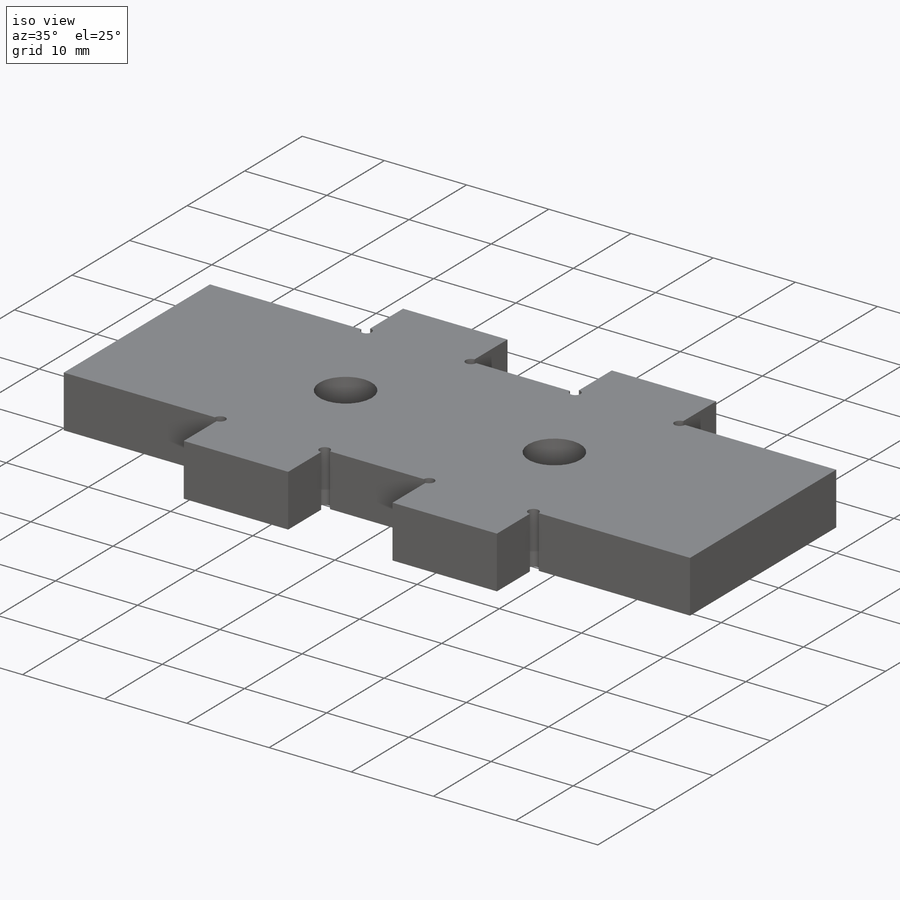
[diagram: iso view]
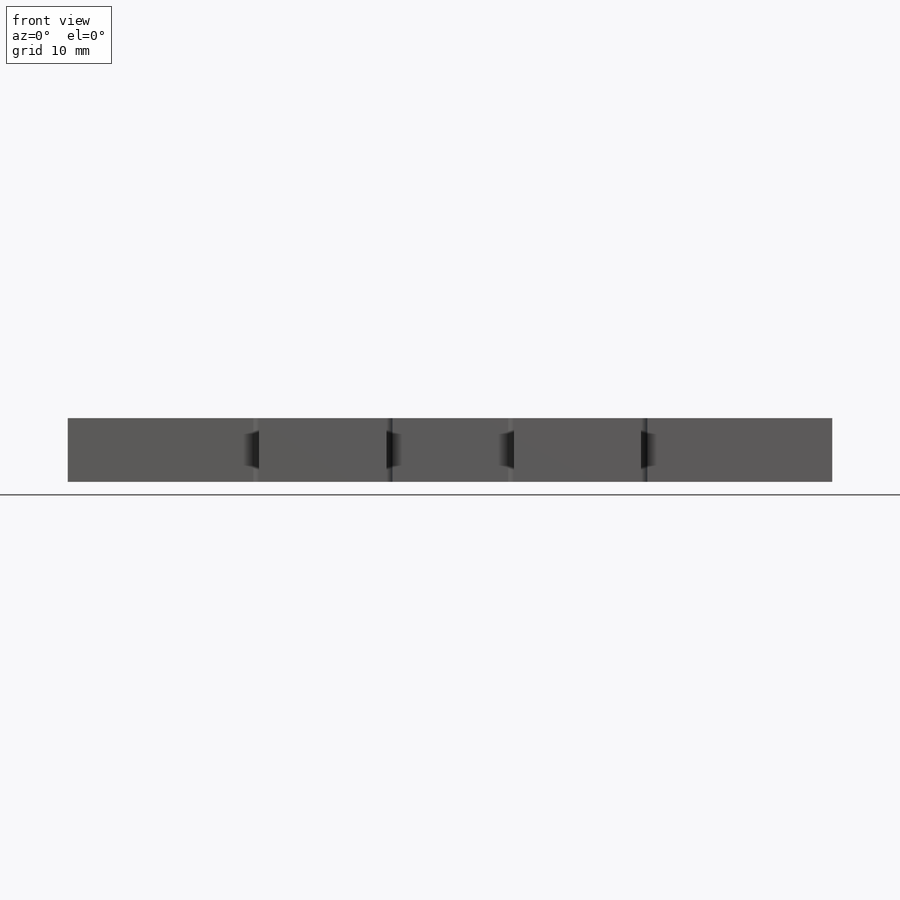
[diagram: front view]
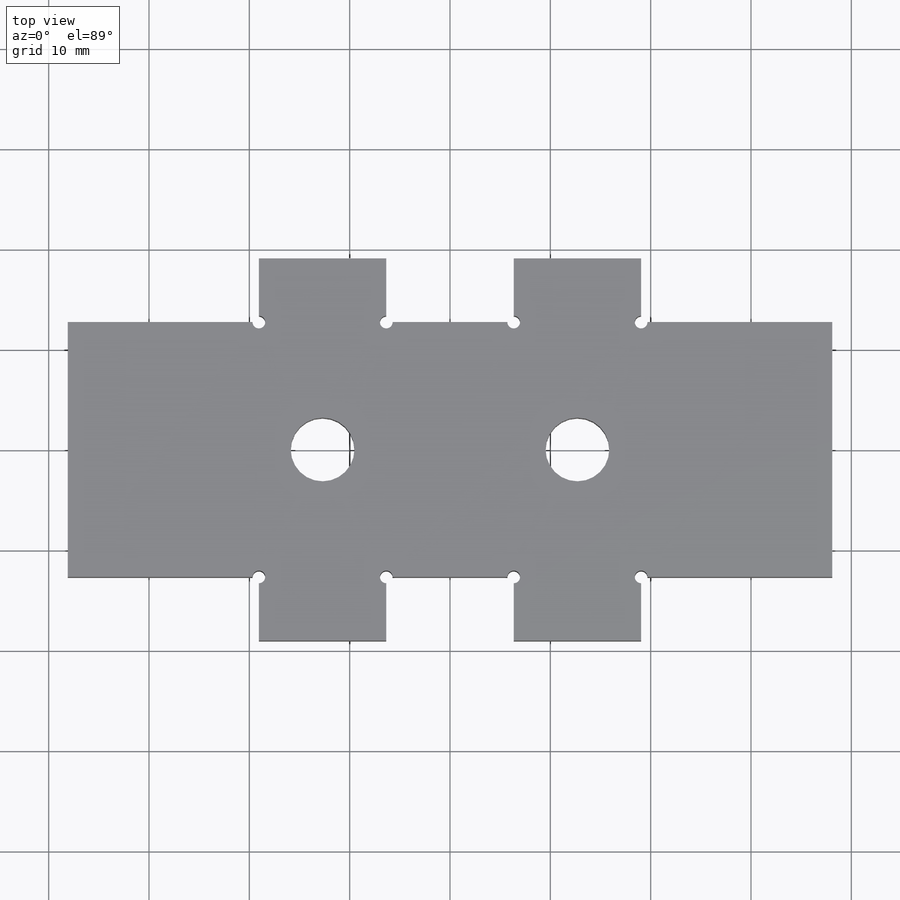
[diagram: top view]
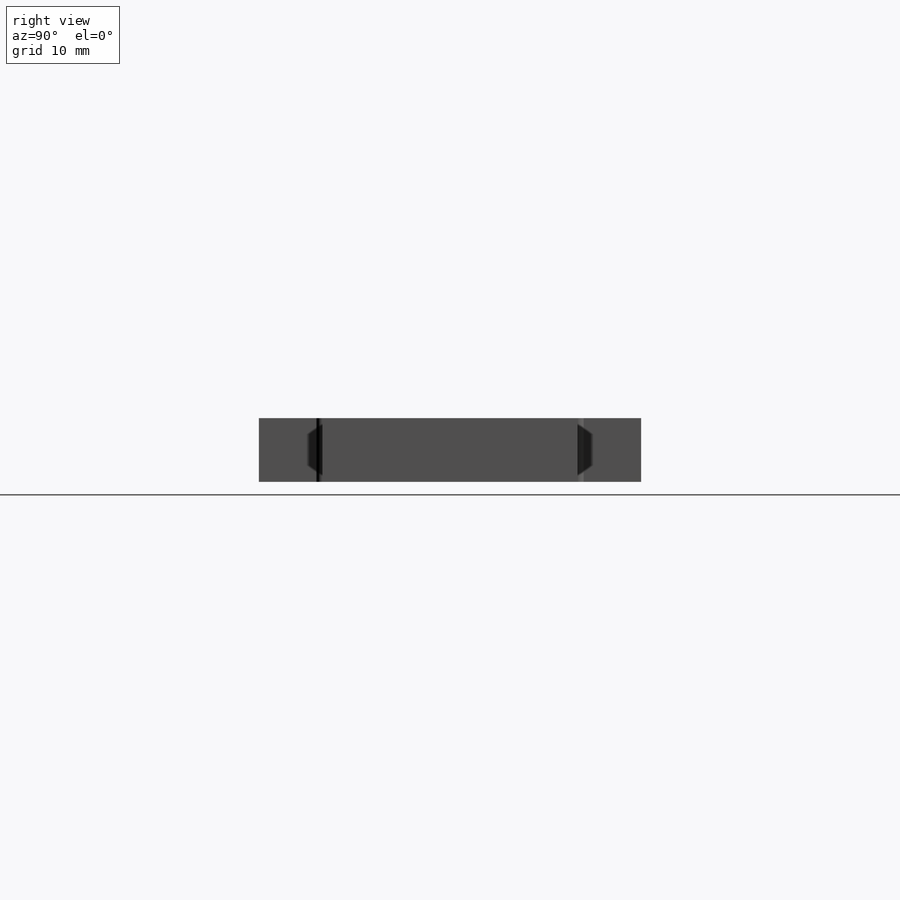
[diagram: right view]
SOLIDWORKS PART (.sldprt)
format: sldprt  version: not decoded by parser v0  size: 464,384 bytes
history: native  units: mm
features: sketch x5, cut_extrude x3, material x1, extrude x1 + 1 further entry (+12 scaffold rows collapsed)
feature tree (23):
  scaffold x12  (default folders/planes/origin — collapsed)
  material  "Acrylic (Medium-high impact)"
  sketch  "Sketch1"  dims[c1.D6=1.27mm c1.D1=25.4mm c1.D2=6.35mm c1.D3=12.7mm c1.D4=25.4mm c1.D5=6.35mm c1.D7=63.5mm c1.D8=6.35mm c2.D2=6.35mm c2.D4=12.7mm c2.D5=19.05mm]
  extrude  "Boss-Extrude1"  Depth=6.35mm
  sketch  "Sketch2"  dims[D1=6.35mm D2=6.35mm]
  cut_extrude  "Cut-Extrude1"  [1 undecoded]
  sketch  "Sketch3"
  sketch  "Sketch4"  dims[D1=1.27mm]
  cut_extrude  "Cut-Extrude2"  [1 undecoded]
  "Sketch-Pattern1"
  sketch  "Sketch5"  dims[D1=6.35mm D2=~10.751758mm]
  cut_extrude  "Cut-Extrude4"  [1 undecoded]
decode coverage: 5 of 9 modeling features carry decoded parameters; 1 rows unclassified (native names shown)
note: ~ marks probable driven/reference dimensions
note: 3 parameter values undecoded
summary: no parameter record found for 3 features
note: suppression state not decoded; provenance and decode notes live in map.json
